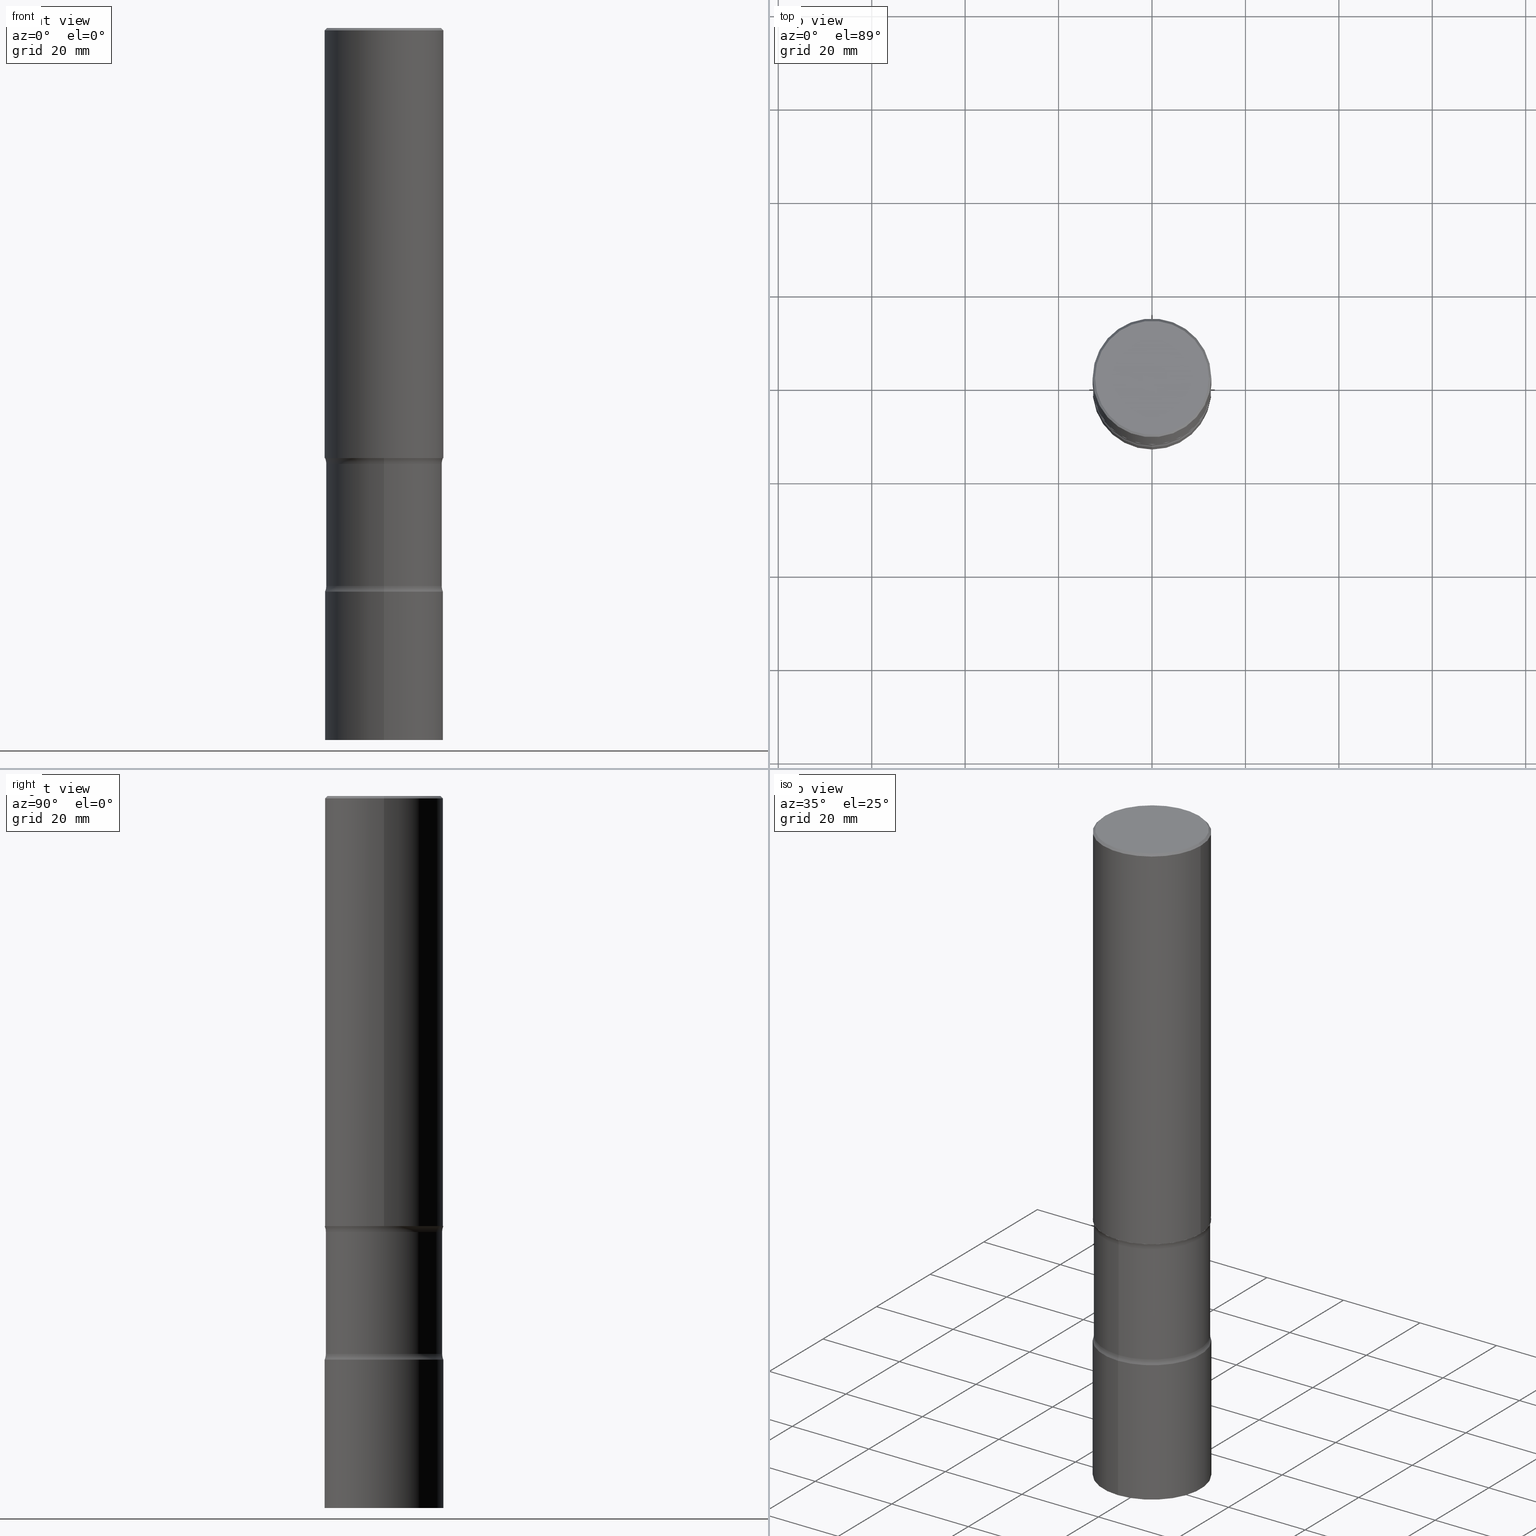
[diagram: canonical four-view strip — front | top / right | iso, engineering-drawing reading convention]
A machine part, canonical four-view strip (front | top / right | iso — engineering-drawing reading convention). The complete STEP part file that produces these views, byte-faithful:
ISO-10303-21;
HEADER;
FILE_DESCRIPTION (( 'STEP AP203' ),
    '1' );
FILE_NAME ('32718.STEP',
    '2024-03-11T13:17:11',
    ( '' ),
    ( '' ),
    'SwSTEP 2.0',
    'SolidWorks 2023',
    '' );
FILE_SCHEMA (( 'CONFIG_CONTROL_DESIGN' ));
ENDSEC;

DATA;
#1 = ORIENTED_EDGE ( 'NONE', *, *, #6, .F. ) ;
#2 = ORIENTED_EDGE ( 'NONE', *, *, #158, .F. ) ;
#3 = FACE_OUTER_BOUND ( 'NONE', #309, .T. ) ;
#4 = EDGE_LOOP ( 'NONE', ( #226, #433 ) ) ;
#5 = AXIS2_PLACEMENT_3D ( 'NONE', #104, #182, #29 ) ;
#6 = EDGE_CURVE ( 'NONE', #94, #41, #86, .T. ) ;
#7 = CC_DESIGN_APPROVAL ( #122, ( #385 ) ) ;
#8 = MECHANICAL_CONTEXT ( 'NONE', #26, 'mechanical' ) ;
#9 = ORIENTED_EDGE ( 'NONE', *, *, #232, .F. ) ;
#10 = EDGE_LOOP ( 'NONE', ( #9, #54 ) ) ;
#11 = MANIFOLD_SOLID_BREP ( 'Body-Move/Copy2[1]', #333 ) ;
#12 = CALENDAR_DATE ( 2024, 11, 3 ) ;
#13 = DIRECTION ( 'NONE',  ( 6.982962677686266711E-15, 1.000000000000000000, -3.345119992241954342E-15 ) ) ;
#14 = CARTESIAN_POINT ( 'NONE',  ( 3.552713678800631091E-15, 0.4999999999999790168, -6.000000000000002665 ) ) ;
#15 = ADVANCED_FACE ( 'NONE', ( #319 ), #476, .T. ) ;
#16 = ORIENTED_EDGE ( 'NONE', *, *, #339, .T. ) ;
#17 = CARTESIAN_POINT ( 'NONE',  ( -4.219206268629404726E-15, -0.6150000000000132028, -3.673989794855663238 ) ) ;
#18 = DIRECTION ( 'NONE',  ( 2.601351323791836917E-29, -3.268248701348439037E-15, -1.000000000000000000 ) ) ;
#19 = LINE ( 'NONE', #415, #420 ) ;
#20 = LINE ( 'NONE', #176, #305 ) ;
#21 = CYLINDRICAL_SURFACE ( 'NONE', #155, 0.5000000000000001110 ) ;
#22 = CLOSED_SHELL ( 'NONE', ( #147, #505, #421, #294, #362, #62 ) ) ;
#23 = CIRCLE ( 'NONE', #224, 0.4900000000000001021 ) ;
#24 = APPROVAL_PERSON_ORGANIZATION ( #297, #122, #293 ) ;
#25 = CARTESIAN_POINT ( 'NONE',  ( 3.421651712066359198E-15, 0.4899999999999870570, -3.673989794855666791 ) ) ;
#26 = APPLICATION_CONTEXT ( 'configuration controlled 3d designs of mechanical parts and assemblies' ) ;
#27 = CARTESIAN_POINT ( 'NONE',  ( 1.486357676291951426E-28, -2.067570323369244540E-14, -5.999999999999999112 ) ) ;
#28 = LINE ( 'NONE', #408, #427 ) ;
#29 = DIRECTION ( 'NONE',  ( 1.000000000000000000, -6.982962677686265922E-15, 4.876176775795935793E-29 ) ) ;
#30 = PERSON_AND_ORGANIZATION ( #220, #378 ) ;
#31 = PLANE ( 'NONE',  #114 ) ;
#32 = CIRCLE ( 'NONE', #445, 0.4900000000000001021 ) ;
#33 = CARTESIAN_POINT ( 'NONE',  ( 1.149617381423846598E-28, -1.641348940497263768E-14, -4.701010205144336318 ) ) ;
#34 = PRODUCT_RELATED_PRODUCT_CATEGORY ( 'detail', '', ( #230 ) ) ;
#35 = ORIENTED_EDGE ( 'NONE', *, *, #423, .F. ) ;
#36 = EDGE_CURVE ( 'NONE', #200, #465, #215, .T. ) ;
#37 = EDGE_LOOP ( 'NONE', ( #358, #78, #398, #326 ) ) ;
#38 = EDGE_CURVE ( 'NONE', #192, #422, #349, .T. ) ;
#39 = AXIS2_PLACEMENT_3D ( 'NONE', #69, #442, #490 ) ;
#40 = EDGE_LOOP ( 'NONE', ( #125, #239, #483, #348 ) ) ;
#41 = VERTEX_POINT ( 'NONE', #72 ) ;
#42 = DIMENSIONAL_EXPONENTS ( 1.000000000000000000, 0.000000000000000000, 0.000000000000000000, 0.000000000000000000, 0.000000000000000000, 0.000000000000000000, 0.000000000000000000 ) ;
#43 = ORIENTED_EDGE ( 'NONE', *, *, #77, .F. ) ;
#44 = CARTESIAN_POINT ( 'NONE',  ( -3.430248998885682162E-15, -0.5000000000000134337, -3.624999999999999112 ) ) ;
#45 = DIRECTION ( 'NONE',  ( 1.000000000000000000, 0.000000000000000000, 0.000000000000000000 ) ) ;
#46 = ORIENTED_EDGE ( 'NONE', *, *, #100, .F. ) ;
#47 = TOROIDAL_SURFACE ( 'NONE', #205, 0.6149999999999999911, 0.1249999999999999306 ) ;
#48 = EDGE_CURVE ( 'NONE', #50, #469, #127, .T. ) ;
#49 = APPROVAL_ROLE ( '' ) ;
#50 = VERTEX_POINT ( 'NONE', #137 ) ;
#51 =( NAMED_UNIT ( * ) SI_UNIT ( $, .STERADIAN. ) SOLID_ANGLE_UNIT ( ) );
#52 = DIRECTION ( 'NONE',  ( 2.601351323791836917E-29, -3.268248701348439037E-15, -1.000000000000000000 ) ) ;
#53 = PERSON_AND_ORGANIZATION ( #220, #378 ) ;
#54 = ORIENTED_EDGE ( 'NONE', *, *, #266, .F. ) ;
#56 = CIRCLE ( 'NONE', #368, 0.1250000000000000278 ) ;
#55 = UNCERTAINTY_MEASURE_WITH_UNIT (LENGTH_MEASURE( 1.000000000000000082E-05 ), #124, 'distance_accuracy_value', 'NONE');
#57 = DIRECTION ( 'NONE',  ( 6.982962677686266711E-15, 1.000000000000000000, -2.230079994827969693E-15 ) ) ;
#58 = EDGE_CURVE ( 'NONE', #364, #350, #257, .T. ) ;
#59 = CARTESIAN_POINT ( 'NONE',  ( -3.491481338842986233E-15, -0.5000000000000209832, -5.999999999999998224 ) ) ;
#60 = CARTESIAN_POINT ( 'NONE',  ( -0.4799999999999995937, 3.386736898677836436E-15, 1.280553747027767124E-17 ) ) ;
#61 = DIRECTION ( 'NONE',  ( -2.445468806185136597E-29, 3.491481338843145583E-15, 1.000000000000000000 ) ) ;
#62 = ADVANCED_FACE ( 'NONE', ( #254 ), #105, .T. ) ;
#63 = CARTESIAN_POINT ( 'NONE',  ( 1.149617381423846598E-28, -1.641348940497263768E-14, -4.701010205144336318 ) ) ;
#64 = CARTESIAN_POINT ( 'NONE',  ( 5.516144398293378327E-29, -3.406175840264733616E-14, -5.999999999999999112 ) ) ;
#65 = CC_DESIGN_PERSON_AND_ORGANIZATION_ASSIGNMENT ( #242, #366, ( #154 ) ) ;
#66 = AXIS2_PLACEMENT_3D ( 'NONE', #437, #91, #243 ) ;
#67 = DIRECTION ( 'NONE',  ( -1.000000000000000000, 6.982962677686266711E-15, 0.000000000000000000 ) ) ;
#68 = CIRCLE ( 'NONE', #351, 0.5000000000000001110 ) ;
#69 = CARTESIAN_POINT ( 'NONE',  ( -3.131554243005659264E-46, 4.471029511141341874E-32, 1.280553747030123384E-17 ) ) ;
#70 = DIRECTION ( 'NONE',  ( -2.444607917511519707E-29, 3.492714180422504382E-15, 1.000000000000000000 ) ) ;
#71 = CARTESIAN_POINT ( 'NONE',  ( 8.864824422421122405E-29, -1.265661985330640574E-14, -3.625000000000000888 ) ) ;
#72 = CARTESIAN_POINT ( 'NONE',  ( -3.395946508896822327E-15, -0.4900000000000131473, -3.673989794855663238 ) ) ;
#73 = APPROVAL ( #166, 'UNSPECIFIED' ) ;
#74 = ORIENTED_EDGE ( 'NONE', *, *, #202, .T. ) ;
#75 = CIRCLE ( 'NONE', #360, 0.5000000000000000000 ) ;
#76 = CC_DESIGN_SECURITY_CLASSIFICATION ( #385, ( #446 ) ) ;
#77 = EDGE_CURVE ( 'NONE', #41, #422, #28, .T. ) ;
#78 = ORIENTED_EDGE ( 'NONE', *, *, #58, .F. ) ;
#79 = ORIENTED_EDGE ( 'NONE', *, *, #472, .T. ) ;
#80 = AXIS2_PLACEMENT_3D ( 'NONE', #112, #151, #344 ) ;
#81 = ORIENTED_EDGE ( 'NONE', *, *, #241, .F. ) ;
#82 = VERTEX_POINT ( 'NONE', #223 ) ;
#83 = CARTESIAN_POINT ( 'NONE',  ( 3.552713678800647657E-15, 0.4999999999999835132, -4.750000000000001776 ) ) ;
#84 = ORIENTED_EDGE ( 'NONE', *, *, #428, .T. ) ;
#85 = CARTESIAN_POINT ( 'NONE',  ( 1.486357676291951426E-28, -2.067570323369244540E-14, -5.999999999999999112 ) ) ;
#86 = CIRCLE ( 'NONE', #216, 0.4900000000000001021 ) ;
#87 = CARTESIAN_POINT ( 'NONE',  ( 8.812807036613977578E-29, -1.307372340140625811E-14, -3.673989794855665014 ) ) ;
#88 = AXIS2_PLACEMENT_3D ( 'NONE', #424, #327, #484 ) ;
#89 = LOCAL_TIME ( 9, 17, 11.00000000000000000, #397 ) ;
#90 = DIRECTION ( 'NONE',  ( 0.000000000000000000, 0.000000000000000000, 1.000000000000000000 ) ) ;
#91 = DIRECTION ( 'NONE',  ( -2.444607917511519987E-29, 3.492714180422504776E-15, 1.000000000000000000 ) ) ;
#92 = DIRECTION ( 'NONE',  ( 2.601351323791836917E-29, -3.268248701348439037E-15, -1.000000000000000000 ) ) ;
#93 = DIRECTION ( 'NONE',  ( -1.000000000000000000, 6.982962677686266711E-15, 0.000000000000000000 ) ) ;
#94 = VERTEX_POINT ( 'NONE', #25 ) ;
#95 = CARTESIAN_POINT ( 'NONE',  ( 1.466764750506912217E-28, -2.095628508253502945E-14, -6.000000000000000888 ) ) ;
#96 = CARTESIAN_POINT ( 'NONE',  ( 0.5000000000000000000, -1.614810119214954068E-14, -3.625000000000000888 ) ) ;
#97 = CARTESIAN_POINT ( 'NONE',  ( 1.161188760817972078E-28, -1.659039235700689818E-14, -4.750000000000000000 ) ) ;
#98 = AXIS2_PLACEMENT_3D ( 'NONE', #439, #92, #272 ) ;
#99 = CIRCLE ( 'NONE', #412, 0.1249999999999999029 ) ;
#100 = EDGE_CURVE ( 'NONE', #329, #197, #203, .T. ) ;
#101 = PLANE ( 'NONE',  #179 ) ;
#102 = DIRECTION ( 'NONE',  ( 0.7071067811865459074, -7.319954787623249734E-15, -0.7071067811865491270 ) ) ;
#103 = DIRECTION ( 'NONE',  ( 6.982962677686265922E-15, 1.000000000000000000, -3.268248701348439037E-15 ) ) ;
#104 = CARTESIAN_POINT ( 'NONE',  ( 8.864824422421122405E-29, -1.265661985330640574E-14, -3.625000000000000888 ) ) ;
#105 = CYLINDRICAL_SURFACE ( 'NONE', #163, 0.4999999999999997780 ) ;
#106 = CARTESIAN_POINT ( 'NONE',  ( 1.148444794047964962E-28, -1.643028152359054986E-14, -4.701010205144336318 ) ) ;
#107 = AXIS2_PLACEMENT_3D ( 'NONE', #331, #455, #290 ) ;
#108 = DIRECTION ( 'NONE',  ( 2.601351323791836917E-29, -3.268248701348439037E-15, -1.000000000000000000 ) ) ;
#109 = DIRECTION ( 'NONE',  ( 6.982962677686266711E-15, 1.000000000000000000, -3.345119992241954342E-15 ) ) ;
#110 = SHAPE_DEFINITION_REPRESENTATION ( #390, #240 ) ;
#111 = DIRECTION ( 'NONE',  ( 2.601351323791836917E-29, -3.268248701348439037E-15, -1.000000000000000000 ) ) ;
#112 = CARTESIAN_POINT ( 'NONE',  ( -4.219206268629376327E-15, -0.6150000000000164224, -4.701010205144334542 ) ) ;
#113 = ORIENTED_EDGE ( 'NONE', *, *, #406, .T. ) ;
#114 = AXIS2_PLACEMENT_3D ( 'NONE', #64, #211, #261 ) ;
#115 = EDGE_CURVE ( 'NONE', #350, #364, #128, .T. ) ;
#116 = EDGE_CURVE ( 'NONE', #94, #192, #221, .T. ) ;
#117 = ORIENTED_EDGE ( 'NONE', *, *, #438, .T. ) ;
#118 = CLOSED_SHELL ( 'NONE', ( #300, #355, #238, #464, #227, #456, #444, #474 ) ) ;
#119 = CIRCLE ( 'NONE', #400, 0.1250000000000000278 ) ;
#120 = APPROVAL_PERSON_ORGANIZATION ( #53, #73, #49 ) ;
#121 = ORIENTED_EDGE ( 'NONE', *, *, #354, .T. ) ;
#122 = APPROVAL ( #458, 'UNSPECIFIED' ) ;
#123 = EDGE_LOOP ( 'NONE', ( #194, #204, #269, #81 ) ) ;
#124 =( CONVERSION_BASED_UNIT ( 'INCH', #247 ) LENGTH_UNIT ( ) NAMED_UNIT ( #42 ) );
#125 = ORIENTED_EDGE ( 'NONE', *, *, #48, .F. ) ;
#126 = ADVANCED_FACE ( 'NONE', ( #413 ), #31, .T. ) ;
#127 = CIRCLE ( 'NONE', #479, 0.5000000000000001110 ) ;
#128 = CIRCLE ( 'NONE', #39, 0.4799999999999995937 ) ;
#129 = DIRECTION ( 'NONE',  ( -6.982962677686265133E-15, -1.000000000000000000, 3.492714180422504382E-15 ) ) ;
#130 = CARTESIAN_POINT ( 'NONE',  ( 0.4999999999999997780, -3.491481338843131778E-15, 2.438088387897966775E-29 ) ) ;
#131 = APPLICATION_PROTOCOL_DEFINITION ( 'international standard', 'config_control_design', 1994, #26 ) ;
#132 = ORIENTED_EDGE ( 'NONE', *, *, #116, .F. ) ;
#133 = DIRECTION ( 'NONE',  ( 6.982962677686266711E-15, 1.000000000000000000, -2.230079994827969693E-15 ) ) ;
#134 = CARTESIAN_POINT ( 'NONE',  ( -3.131554243005659264E-46, 4.471029511141341874E-32, 1.280553747030123384E-17 ) ) ;
#135 = DIRECTION ( 'NONE',  ( 2.601351323791836917E-29, -3.268248701348439037E-15, -1.000000000000000000 ) ) ;
#136 = CALENDAR_DATE ( 2024, 11, 3 ) ;
#137 = CARTESIAN_POINT ( 'NONE',  ( -3.430248998885650608E-15, -0.5000000000000167644, -4.749999999999999112 ) ) ;
#138 = VECTOR ( 'NONE', #452, 39.37007874015748143 ) ;
#139 = CARTESIAN_POINT ( 'NONE',  ( 0.4999999999999996114, -3.500078625662626318E-15, -0.02000000000000006981 ) ) ;
#140 = PLANE ( 'NONE',  #410 ) ;
#141 = LINE ( 'NONE', #296, #471 ) ;
#142 = SECURITY_CLASSIFICATION_LEVEL ( 'unclassified' ) ;
#143 = CARTESIAN_POINT ( 'NONE',  ( 0.000000000000000000, 0.000000000000000000, 0.000000000000000000 ) ) ;
#144 = PLANE ( 'NONE',  #5 ) ;
#145 = PERSON_AND_ORGANIZATION ( #220, #378 ) ;
#146 = DIRECTION ( 'NONE',  ( 1.000000000000000000, -6.982962677686266711E-15, 0.000000000000000000 ) ) ;
#147 = ADVANCED_FACE ( 'NONE', ( #416 ), #380, .T. ) ;
#148 = CARTESIAN_POINT ( 'NONE',  ( 8.812807036613977578E-29, -1.307372340140625811E-14, -3.673989794855665014 ) ) ;
#149 = TOROIDAL_SURFACE ( 'NONE', #346, 0.6149999999999999911, 0.1249999999999999306 ) ;
#150 = APPROVAL_DATE_TIME ( #500, #382 ) ;
#151 = DIRECTION ( 'NONE',  ( 1.000000000000000000, -6.860497997771530774E-15, 4.843532690973873817E-29 ) ) ;
#152 = ORIENTED_EDGE ( 'NONE', *, *, #472, .F. ) ;
#153 = ORIENTED_EDGE ( 'NONE', *, *, #414, .F. ) ;
#154 = PRODUCT_DEFINITION ( 'UNKNOWN', '', #446, #467 ) ;
#155 = AXIS2_PLACEMENT_3D ( 'NONE', #497, #301, #180 ) ;
#156 = LOCAL_TIME ( 9, 17, 11.00000000000000000, #281 ) ;
#157 = ORIENTED_EDGE ( 'NONE', *, *, #283, .T. ) ;
#158 = EDGE_CURVE ( 'NONE', #364, #329, #20, .T. ) ;
#159 = ORIENTED_EDGE ( 'NONE', *, *, #365, .F. ) ;
#160 = CC_DESIGN_PERSON_AND_ORGANIZATION_ASSIGNMENT ( #489, #207, ( #385 ) ) ;
#161 = ORIENTED_EDGE ( 'NONE', *, *, #266, .T. ) ;
#162 = DIRECTION ( 'NONE',  ( 2.601351323791836917E-29, -3.268248701348439037E-15, -1.000000000000000000 ) ) ;
#163 = AXIS2_PLACEMENT_3D ( 'NONE', #143, #251, #286 ) ;
#164 = VERTEX_POINT ( 'NONE', #181 ) ;
#165 = DIRECTION ( 'NONE',  ( 2.601351323791836917E-29, -3.268248701348439037E-15, -1.000000000000000000 ) ) ;
#166 = APPROVAL_STATUS ( 'not_yet_approved' ) ;
#167 = ORIENTED_EDGE ( 'NONE', *, *, #241, .T. ) ;
#168 = EDGE_CURVE ( 'NONE', #267, #357, #68, .T. ) ;
#169 = CALENDAR_DATE ( 2024, 11, 3 ) ;
#170 = EDGE_CURVE ( 'NONE', #478, #164, #506, .T. ) ;
#171 = AXIS2_PLACEMENT_3D ( 'NONE', #95, #488, #443 ) ;
#172 = EDGE_LOOP ( 'NONE', ( #470, #507 ) ) ;
#173 = DIRECTION ( 'NONE',  ( 2.601351323791836917E-29, -3.268248701348439037E-15, -1.000000000000000000 ) ) ;
#174 = ORIENTED_EDGE ( 'NONE', *, *, #115, .T. ) ;
#175 = DIRECTION ( 'NONE',  ( -1.000000000000000000, 6.982962677686265922E-15, -4.876176775795935793E-29 ) ) ;
#176 = CARTESIAN_POINT ( 'NONE',  ( -0.4999999999999996114, 3.421651712066267296E-15, -0.02000000000000006981 ) ) ;
#177 = FACE_OUTER_BOUND ( 'NONE', #235, .T. ) ;
#178 = DIRECTION ( 'NONE',  ( 2.444607917511519987E-29, -3.492714180422504382E-15, -1.000000000000000000 ) ) ;
#179 = AXIS2_PLACEMENT_3D ( 'NONE', #405, #178, #334 ) ;
#180 = DIRECTION ( 'NONE',  ( -6.982962677686265133E-15, -1.000000000000000000, 3.492714180422504382E-15 ) ) ;
#181 = CARTESIAN_POINT ( 'NONE',  ( -0.5000000000000000000, -2.810511061241131620E-15, -3.625000000000000888 ) ) ;
#182 = DIRECTION ( 'NONE',  ( -2.438088387897960049E-29, 3.491481338843145188E-15, 1.000000000000000000 ) ) ;
#183 = FACE_OUTER_BOUND ( 'NONE', #275, .T. ) ;
#184 = DIRECTION ( 'NONE',  ( -2.445468806185136597E-29, 3.491481338843145583E-15, 1.000000000000000000 ) ) ;
#185 = CARTESIAN_POINT ( 'NONE',  ( 4.890937612370289799E-31, -6.982962677686315028E-17, -0.02000000000000006981 ) ) ;
#186 = APPROVAL_ROLE ( '' ) ;
#187 = DIRECTION ( 'NONE',  ( -2.445468806185136597E-29, 3.491481338843145583E-15, 1.000000000000000000 ) ) ;
#188 = DIRECTION ( 'NONE',  ( -2.445468806185136597E-29, 3.491481338843145583E-15, 1.000000000000000000 ) ) ;
#189 = VECTOR ( 'NONE', #102, 39.37007874015748143 ) ;
#190 = ORIENTED_EDGE ( 'NONE', *, *, #318, .T. ) ;
#191 = AXIS2_PLACEMENT_3D ( 'NONE', #503, #308, #463 ) ;
#192 = VERTEX_POINT ( 'NONE', #496 ) ;
#193 = CC_DESIGN_PERSON_AND_ORGANIZATION_ASSIGNMENT ( #145, #302, ( #446 ) ) ;
#194 = ORIENTED_EDGE ( 'NONE', *, *, #170, .T. ) ;
#195 = FACE_OUTER_BOUND ( 'NONE', #391, .T. ) ;
#196 = AXIS2_PLACEMENT_3D ( 'NONE', #185, #206, #292 ) ;
#197 = VERTEX_POINT ( 'NONE', #372 ) ;
#198 = ORIENTED_EDGE ( 'NONE', *, *, #48, .T. ) ;
#199 = FACE_OUTER_BOUND ( 'NONE', #231, .T. ) ;
#200 = VERTEX_POINT ( 'NONE', #59 ) ;
#201 = CARTESIAN_POINT ( 'NONE',  ( 3.491481338843249712E-15, 0.4999999999999836242, -4.750000000000001776 ) ) ;
#202 = EDGE_CURVE ( 'NONE', #357, #267, #501, .T. ) ;
#203 = CIRCLE ( 'NONE', #277, 0.4999999999999996114 ) ;
#204 = ORIENTED_EDGE ( 'NONE', *, *, #414, .T. ) ;
#205 = AXIS2_PLACEMENT_3D ( 'NONE', #33, #111, #264 ) ;
#206 = DIRECTION ( 'NONE',  ( -2.445468806185136597E-29, 3.491481338843145583E-15, 1.000000000000000000 ) ) ;
#207 = PERSON_AND_ORGANIZATION_ROLE ( 'classification_officer' ) ;
#208 = CC_DESIGN_DATE_AND_TIME_ASSIGNMENT ( #482, #263, ( #154 ) ) ;
#209 = CARTESIAN_POINT ( 'NONE',  ( 0.000000000000000000, 0.000000000000000000, 0.000000000000000000 ) ) ;
#210 = CARTESIAN_POINT ( 'NONE',  ( -0.4999999999999996114, 3.421651712066267296E-15, -0.02000000000000006981 ) ) ;
#211 = DIRECTION ( 'NONE',  ( 2.444607917511519987E-29, -3.492714180422504382E-15, -1.000000000000000000 ) ) ;
#212 = FACE_OUTER_BOUND ( 'NONE', #425, .T. ) ;
#213 = DATE_TIME_ROLE ( 'classification_date' ) ;
#214 = DIRECTION ( 'NONE',  ( -0.7071067811865459074, 2.468850131082240100E-15, -0.7071067811865491270 ) ) ;
#215 = CIRCLE ( 'NONE', #66, 0.5000000000000000000 ) ;
#216 = AXIS2_PLACEMENT_3D ( 'NONE', #87, #165, #13 ) ;
#217 = ADVANCED_FACE ( 'NONE', ( #448 ), #101, .F. ) ;
#218 = CARTESIAN_POINT ( 'NONE',  ( -3.395946508896793533E-15, -0.4900000000000166445, -4.701010205144335430 ) ) ;
#219 = LOCAL_TIME ( 9, 17, 11.00000000000000000, #462 ) ;
#220 = PERSON ( 'UNSPECIFIED', 'UNSPECIFIED', 'UNSPECIFIED', ('UNSPECIFIED'), ('UNSPECIFIED'), ('UNSPECIFIED') ) ;
#221 = LINE ( 'NONE', #461, #323 ) ;
#222 = DIRECTION ( 'NONE',  ( 2.601351323791836917E-29, -3.268248701348439037E-15, -1.000000000000000000 ) ) ;
#223 = CARTESIAN_POINT ( 'NONE',  ( 3.491481338843223285E-15, 0.4999999999999875655, -3.625000000000002665 ) ) ;
#224 = AXIS2_PLACEMENT_3D ( 'NONE', #148, #262, #109 ) ;
#225 = LOCAL_TIME ( 9, 17, 11.00000000000000000, #253 ) ;
#226 = ORIENTED_EDGE ( 'NONE', *, *, #170, .F. ) ;
#227 = ADVANCED_FACE ( 'NONE', ( #256 ), #140, .F. ) ;
#228 = ORIENTED_EDGE ( 'NONE', *, *, #354, .F. ) ;
#229 = EDGE_CURVE ( 'NONE', #50, #422, #311, .T. ) ;
#230 = PRODUCT ( '32718', '32718', '', ( #8 ) ) ;
#231 = EDGE_LOOP ( 'NONE', ( #361, #113, #190, #2 ) ) ;
#232 = EDGE_CURVE ( 'NONE', #82, #273, #466, .T. ) ;
#233 = ORIENTED_EDGE ( 'NONE', *, *, #6, .T. ) ;
#234 = CARTESIAN_POINT ( 'NONE',  ( 0.000000000000000000, 0.000000000000000000, 0.000000000000000000 ) ) ;
#235 = EDGE_LOOP ( 'NONE', ( #504, #174 ) ) ;
#236 = CIRCLE ( 'NONE', #196, 0.4999999999999996114 ) ;
#237 = AXIS2_PLACEMENT_3D ( 'NONE', #313, #440, #328 ) ;
#238 = ADVANCED_FACE ( 'NONE', ( #419 ), #393, .F. ) ;
#239 = ORIENTED_EDGE ( 'NONE', *, *, #229, .T. ) ;
#240 = ADVANCED_BREP_SHAPE_REPRESENTATION ( '32718', ( #11, #347, #356, #291 ), #435 ) ;
#241 = EDGE_CURVE ( 'NONE', #478, #197, #268, .T. ) ;
#242 = PERSON_AND_ORGANIZATION ( #220, #378 ) ;
#243 = DIRECTION ( 'NONE',  ( -6.982962677686265922E-15, -1.000000000000000000, 4.370956789862821150E-15 ) ) ;
#244 = PERSON_AND_ORGANIZATION_ROLE ( 'design_owner' ) ;
#245 = ORIENTED_EDGE ( 'NONE', *, *, #365, .T. ) ;
#246 = PLANE ( 'NONE',  #460 ) ;
#247 = LENGTH_MEASURE_WITH_UNIT ( LENGTH_MEASURE( 0.02539999999999999897 ), #316 );
#248 = DIRECTION ( 'NONE',  ( 6.982962677686265922E-15, 1.000000000000000000, -3.278217592397115073E-15 ) ) ;
#249 = DIRECTION ( 'NONE',  ( 6.982962677686265922E-15, 1.000000000000000000, -3.268248701348439037E-15 ) ) ;
#250 = PERSON_AND_ORGANIZATION ( #220, #378 ) ;
#251 = DIRECTION ( 'NONE',  ( -2.445468806185136597E-29, 3.491481338843145583E-15, 1.000000000000000000 ) ) ;
#252 = DIRECTION ( 'NONE',  ( 1.000000000000000000, -6.860497997771530774E-15, 4.843532690973873817E-29 ) ) ;
#253 = COORDINATED_UNIVERSAL_TIME_OFFSET ( 5, 0, .BEHIND. ) ;
#254 = FACE_OUTER_BOUND ( 'NONE', #265, .T. ) ;
#255 = DIRECTION ( 'NONE',  ( -2.445468806185136877E-29, 3.491481338843145188E-15, 1.000000000000000000 ) ) ;
#256 = FACE_OUTER_BOUND ( 'NONE', #10, .T. ) ;
#257 = CIRCLE ( 'NONE', #322, 0.4799999999999995937 ) ;
#258 = CC_DESIGN_APPROVAL ( #73, ( #154 ) ) ;
#259 = FACE_OUTER_BOUND ( 'NONE', #37, .T. ) ;
#260 = DATE_AND_TIME ( #376, #225 ) ;
#261 = DIRECTION ( 'NONE',  ( 6.982962677686265922E-15, 1.000000000000000000, -3.492714180422504382E-15 ) ) ;
#262 = DIRECTION ( 'NONE',  ( 2.601351323791836917E-29, -3.268248701348439037E-15, -1.000000000000000000 ) ) ;
#263 = DATE_TIME_ROLE ( 'creation_date' ) ;
#264 = DIRECTION ( 'NONE',  ( 6.982962677686265922E-15, 1.000000000000000000, -3.268248701348439037E-15 ) ) ;
#265 = EDGE_LOOP ( 'NONE', ( #153, #314, #167, #46 ) ) ;
#266 = EDGE_CURVE ( 'NONE', #273, #82, #434, .T. ) ;
#267 = VERTEX_POINT ( 'NONE', #83 ) ;
#268 = LINE ( 'NONE', #130, #480 ) ;
#269 = ORIENTED_EDGE ( 'NONE', *, *, #318, .F. ) ;
#270 = AXIS2_PLACEMENT_3D ( 'NONE', #338, #184, #146 ) ;
#271 = ORIENTED_EDGE ( 'NONE', *, *, #232, .T. ) ;
#272 = DIRECTION ( 'NONE',  ( 6.982962677686265133E-15, 1.000000000000000000, -3.278217592397113101E-15 ) ) ;
#273 = VERTEX_POINT ( 'NONE', #44 ) ;
#274 = PERSON_AND_ORGANIZATION ( #220, #378 ) ;
#275 = EDGE_LOOP ( 'NONE', ( #79, #198 ) ) ;
#276 = AXIS2_PLACEMENT_3D ( 'NONE', #394, #321, #129 ) ;
#277 = AXIS2_PLACEMENT_3D ( 'NONE', #494, #383, #499 ) ;
#278 = CYLINDRICAL_SURFACE ( 'NONE', #335, 0.4900000000000001021 ) ;
#279 = TOROIDAL_SURFACE ( 'NONE', #352, 0.6150000000000001021, 0.1250000000000000278 ) ;
#280 = ORIENTED_EDGE ( 'NONE', *, *, #438, .F. ) ;
#281 = COORDINATED_UNIVERSAL_TIME_OFFSET ( 5, 0, .BEHIND. ) ;
#282 = ORIENTED_EDGE ( 'NONE', *, *, #38, .T. ) ;
#283 = EDGE_CURVE ( 'NONE', #465, #200, #389, .T. ) ;
#284 = CYLINDRICAL_SURFACE ( 'NONE', #384, 0.4900000000000001021 ) ;
#285 = DIRECTION ( 'NONE',  ( 6.982962677686265922E-15, 1.000000000000000000, -3.278217592397115073E-15 ) ) ;
#286 = DIRECTION ( 'NONE',  ( 1.000000000000000000, -6.982962677686266711E-15, 4.876176775795935793E-29 ) ) ;
#287 = FACE_OUTER_BOUND ( 'NONE', #371, .T. ) ;
#288 = CARTESIAN_POINT ( 'NONE',  ( -3.491481338843133355E-15, -0.5000000000000001110, 1.746357090211252585E-15 ) ) ;
#289 = AXIS2_PLACEMENT_3D ( 'NONE', #209, #61, #486 ) ;
#290 = DIRECTION ( 'NONE',  ( -6.982962677686265922E-15, -1.000000000000000000, 3.278217592397115073E-15 ) ) ;
#291 = AXIS2_PLACEMENT_3D ( 'NONE', #234, #90, #45 ) ;
#292 = DIRECTION ( 'NONE',  ( 1.000000000000000000, -6.982962677686266711E-15, 0.000000000000000000 ) ) ;
#293 = APPROVAL_ROLE ( '' ) ;
#294 = ADVANCED_FACE ( 'NONE', ( #177 ), #246, .F. ) ;
#295 = CARTESIAN_POINT ( 'NONE',  ( 8.864824422421122405E-29, -1.265661985330640574E-14, -3.625000000000000888 ) ) ;
#296 = CARTESIAN_POINT ( 'NONE',  ( -0.4999999999999997780, 3.552713678800499352E-15, -2.459467545127452050E-29 ) ) ;
#297 = PERSON_AND_ORGANIZATION ( #220, #378 ) ;
#298 = FACE_OUTER_BOUND ( 'NONE', #430, .T. ) ;
#299 = DIRECTION ( 'NONE',  ( -2.444607917511519987E-29, 3.492714180422504776E-15, 1.000000000000000000 ) ) ;
#300 = ADVANCED_FACE ( 'NONE', ( #212 ), #284, .T. ) ;
#301 = DIRECTION ( 'NONE',  ( -2.444607917511519987E-29, 3.492714180422504776E-15, 1.000000000000000000 ) ) ;
#302 = PERSON_AND_ORGANIZATION_ROLE ( 'creator' ) ;
#303 = PLANE ( 'NONE',  #237 ) ;
#304 = DIRECTION ( 'NONE',  ( 2.601351323791836917E-29, -3.268248701348439037E-15, -1.000000000000000000 ) ) ;
#305 = VECTOR ( 'NONE', #214, 39.37007874015748143 ) ;
#306 = CC_DESIGN_APPROVAL ( #382, ( #446 ) ) ;
#307 = APPROVAL_DATE_TIME ( #260, #122 ) ;
#308 = DIRECTION ( 'NONE',  ( 2.601351323791836917E-29, -3.268248701348439037E-15, -1.000000000000000000 ) ) ;
#309 = EDGE_LOOP ( 'NONE', ( #43, #84, #317, #35 ) ) ;
#310 = EDGE_LOOP ( 'NONE', ( #359, #157, #117, #468 ) ) ;
#311 = CIRCLE ( 'NONE', #80, 0.1249999999999999029 ) ;
#312 = AXIS2_PLACEMENT_3D ( 'NONE', #369, #173, #285 ) ;
#313 = CARTESIAN_POINT ( 'NONE',  ( 1.161597682937940108E-28, -1.658453635950494339E-14, -4.750000000000000000 ) ) ;
#314 = ORIENTED_EDGE ( 'NONE', *, *, #436, .T. ) ;
#315 = AXIS2_PLACEMENT_3D ( 'NONE', #409, #457, #67 ) ;
#316 =( LENGTH_UNIT ( ) NAMED_UNIT ( * ) SI_UNIT ( $, .METRE. ) );
#317 = ORIENTED_EDGE ( 'NONE', *, *, #116, .T. ) ;
#318 = EDGE_CURVE ( 'NONE', #197, #329, #236, .T. ) ;
#319 = FACE_OUTER_BOUND ( 'NONE', #310, .T. ) ;
#320 = APPLICATION_PROTOCOL_DEFINITION ( 'international standard', 'config_control_design', 1994, #454 ) ;
#321 = DIRECTION ( 'NONE',  ( -2.444607917511519987E-29, 3.492714180422504776E-15, 1.000000000000000000 ) ) ;
#322 = AXIS2_PLACEMENT_3D ( 'NONE', #134, #188, #340 ) ;
#323 = VECTOR ( 'NONE', #18, 39.37007874015748143 ) ;
#324 =( NAMED_UNIT ( * ) PLANE_ANGLE_UNIT ( ) SI_UNIT ( $, .RADIAN. ) );
#325 = ADVANCED_FACE ( 'NONE', ( #287 ), #21, .T. ) ;
#326 = ORIENTED_EDGE ( 'NONE', *, *, #100, .T. ) ;
#327 = DIRECTION ( 'NONE',  ( 2.601351323791836917E-29, -3.268248701348439037E-15, -1.000000000000000000 ) ) ;
#328 = DIRECTION ( 'NONE',  ( -6.982962677686265922E-15, -1.000000000000000000, 3.268248701348439037E-15 ) ) ;
#329 = VERTEX_POINT ( 'NONE', #210 ) ;
#330 = PERSON_AND_ORGANIZATION_ROLE ( 'design_supplier' ) ;
#331 = CARTESIAN_POINT ( 'NONE',  ( 1.161188760817972078E-28, -1.659039235700689818E-14, -4.750000000000000000 ) ) ;
#332 = DIRECTION ( 'NONE',  ( -6.982962677686265133E-15, -1.000000000000000000, 0.000000000000000000 ) ) ;
#333 = CLOSED_SHELL ( 'NONE', ( #325, #15, #217, #126 ) ) ;
#334 = DIRECTION ( 'NONE',  ( 6.982962677686265922E-15, 1.000000000000000000, -3.492714180422504382E-15 ) ) ;
#335 = AXIS2_PLACEMENT_3D ( 'NONE', #85, #485, #133 ) ;
#336 = DIRECTION ( 'NONE',  ( 6.860497997771532351E-15, 1.000000000000000000, 0.000000000000000000 ) ) ;
#337 = DIRECTION ( 'NONE',  ( 1.000000000000000000, -6.982962677686266711E-15, 0.000000000000000000 ) ) ;
#338 = CARTESIAN_POINT ( 'NONE',  ( 8.864824422421122405E-29, -1.265661985330640574E-14, -3.625000000000000888 ) ) ;
#339 = EDGE_CURVE ( 'NONE', #465, #267, #19, .T. ) ;
#340 = DIRECTION ( 'NONE',  ( 1.000000000000000000, -6.982962677686266711E-15, 4.876036955247133327E-29 ) ) ;
#341 = DIRECTION ( 'NONE',  ( 2.438088387897960049E-29, -3.491481338843145188E-15, -1.000000000000000000 ) ) ;
#342 = CALENDAR_DATE ( 2024, 11, 3 ) ;
#343 = LINE ( 'NONE', #288, #138 ) ;
#344 = DIRECTION ( 'NONE',  ( 6.860497997771531562E-15, 1.000000000000000000, 0.000000000000000000 ) ) ;
#345 = CC_DESIGN_PERSON_AND_ORGANIZATION_ASSIGNMENT ( #250, #330, ( #446 ) ) ;
#346 = AXIS2_PLACEMENT_3D ( 'NONE', #63, #135, #249 ) ;
#347 = MANIFOLD_SOLID_BREP ( 'Body-Move/Copy2[2]', #22 ) ;
#348 = ORIENTED_EDGE ( 'NONE', *, *, #451, .F. ) ;
#349 = CIRCLE ( 'NONE', #459, 0.4900000000000001021 ) ;
#350 = VERTEX_POINT ( 'NONE', #375 ) ;
#351 = AXIS2_PLACEMENT_3D ( 'NONE', #97, #299, #402 ) ;
#352 = AXIS2_PLACEMENT_3D ( 'NONE', #432, #162, #395 ) ;
#353 = CONICAL_SURFACE ( 'NONE', #481, 0.4999999999999996114, 0.7853981633974460586 ) ;
#354 = EDGE_CURVE ( 'NONE', #41, #273, #56, .T. ) ;
#355 = ADVANCED_FACE ( 'NONE', ( #379 ), #149, .F. ) ;
#356 = MANIFOLD_SOLID_BREP ( 'Body-Move/Copy2[4]', #118 ) ;
#357 = VERTEX_POINT ( 'NONE', #495 ) ;
#358 = ORIENTED_EDGE ( 'NONE', *, *, #406, .F. ) ;
#359 = ORIENTED_EDGE ( 'NONE', *, *, #339, .F. ) ;
#360 = AXIS2_PLACEMENT_3D ( 'NONE', #71, #187, #337 ) ;
#361 = ORIENTED_EDGE ( 'NONE', *, *, #115, .F. ) ;
#362 = ADVANCED_FACE ( 'NONE', ( #403 ), #144, .F. ) ;
#363 = DATE_AND_TIME ( #12, #89 ) ;
#364 = VERTEX_POINT ( 'NONE', #60 ) ;
#365 = EDGE_CURVE ( 'NONE', #94, #82, #119, .T. ) ;
#366 = PERSON_AND_ORGANIZATION_ROLE ( 'creator' ) ;
#367 = ORIENTED_EDGE ( 'NONE', *, *, #168, .T. ) ;
#368 = AXIS2_PLACEMENT_3D ( 'NONE', #17, #252, #336 ) ;
#369 = CARTESIAN_POINT ( 'NONE',  ( 1.161188760817972078E-28, -1.659039235700689818E-14, -4.750000000000000000 ) ) ;
#370 = LOCAL_TIME ( 9, 17, 11.00000000000000000, #450 ) ;
#371 = EDGE_LOOP ( 'NONE', ( #387, #16, #386, #280 ) ) ;
#372 = CARTESIAN_POINT ( 'NONE',  ( 0.4999999999999996114, -3.500078625662626318E-15, -0.02000000000000006981 ) ) ;
#373 = DIRECTION ( 'NONE',  ( -1.000000000000000000, 6.982962677686265922E-15, -4.883557194083112340E-29 ) ) ;
#374 = DIRECTION ( 'NONE',  ( 6.982962677686266711E-15, 1.000000000000000000, -3.345119992241954342E-15 ) ) ;
#375 = CARTESIAN_POINT ( 'NONE',  ( 0.4799999999999995937, -3.396558832296479338E-15, 1.280553747032483033E-17 ) ) ;
#376 = CALENDAR_DATE ( 2024, 11, 3 ) ;
#377 = CARTESIAN_POINT ( 'NONE',  ( 1.161188760817972078E-28, -1.659039235700689818E-14, -4.750000000000000000 ) ) ;
#378 = ORGANIZATION ( 'UNSPECIFIED', 'UNSPECIFIED', '' ) ;
#379 = FACE_OUTER_BOUND ( 'NONE', #40, .T. ) ;
#380 = CYLINDRICAL_SURFACE ( 'NONE', #289, 0.4999999999999997780 ) ;
#381 = DIRECTION ( 'NONE',  ( 6.982962677686266711E-15, 1.000000000000000000, -3.345119992241954342E-15 ) ) ;
#382 = APPROVAL ( #498, 'UNSPECIFIED' ) ;
#383 = DIRECTION ( 'NONE',  ( -2.445468806185136597E-29, 3.491481338843145583E-15, 1.000000000000000000 ) ) ;
#384 = AXIS2_PLACEMENT_3D ( 'NONE', #27, #399, #57 ) ;
#385 = SECURITY_CLASSIFICATION ( '', '', #142 ) ;
#386 = ORIENTED_EDGE ( 'NONE', *, *, #202, .F. ) ;
#387 = ORIENTED_EDGE ( 'NONE', *, *, #36, .T. ) ;
#388 = ORIENTED_EDGE ( 'NONE', *, *, #38, .F. ) ;
#389 = CIRCLE ( 'NONE', #171, 0.5000000000000000000 ) ;
#390 = PRODUCT_DEFINITION_SHAPE ( 'NONE', 'NONE',  #154 ) ;
#391 = EDGE_LOOP ( 'NONE', ( #228, #1, #245, #271 ) ) ;
#392 = ORIENTED_EDGE ( 'NONE', *, *, #229, .F. ) ;
#393 = TOROIDAL_SURFACE ( 'NONE', #88, 0.6150000000000001021, 0.1250000000000000278 ) ;
#394 = CARTESIAN_POINT ( 'NONE',  ( 0.000000000000000000, 0.000000000000000000, 0.000000000000000000 ) ) ;
#395 = DIRECTION ( 'NONE',  ( 6.982962677686265922E-15, 1.000000000000000000, -3.268248701348439432E-15 ) ) ;
#396 = CARTESIAN_POINT ( 'NONE',  ( 1.148444794047964962E-28, -1.643028152359054986E-14, -4.701010205144336318 ) ) ;
#397 = COORDINATED_UNIVERSAL_TIME_OFFSET ( 5, 0, .BEHIND. ) ;
#398 = ORIENTED_EDGE ( 'NONE', *, *, #158, .T. ) ;
#399 = DIRECTION ( 'NONE',  ( 2.601351323791836917E-29, -3.268248701348439037E-15, -1.000000000000000000 ) ) ;
#400 = AXIS2_PLACEMENT_3D ( 'NONE', #449, #373, #332 ) ;
#401 = DIRECTION ( 'NONE',  ( 2.445468806185136597E-29, -3.491481338843145583E-15, -1.000000000000000000 ) ) ;
#402 = DIRECTION ( 'NONE',  ( -6.982962677686265922E-15, -1.000000000000000000, 3.278217592397115073E-15 ) ) ;
#403 = FACE_OUTER_BOUND ( 'NONE', #4, .T. ) ;
#404 = CC_DESIGN_PERSON_AND_ORGANIZATION_ASSIGNMENT ( #274, #244, ( #230 ) ) ;
#405 = CARTESIAN_POINT ( 'NONE',  ( 1.161597682937940108E-28, -1.658453635950494339E-14, -4.750000000000000000 ) ) ;
#406 = EDGE_CURVE ( 'NONE', #350, #197, #491, .T. ) ;
#407 = CARTESIAN_POINT ( 'NONE',  ( 3.351822085289404787E-15, 0.4799999999999995937, -1.669508273909557867E-15 ) ) ;
#408 = CARTESIAN_POINT ( 'NONE',  ( -3.361644018907902538E-15, -0.4900000000000208078, -5.999999999999998224 ) ) ;
#409 = CARTESIAN_POINT ( 'NONE',  ( 4.890937612370289799E-31, -6.982962677686315028E-17, -0.02000000000000006981 ) ) ;
#410 = AXIS2_PLACEMENT_3D ( 'NONE', #295, #453, #103 ) ;
#411 = DIRECTION ( 'NONE',  ( -1.000000000000000000, 6.982962677686265922E-15, -4.883557194083112340E-29 ) ) ;
#412 = AXIS2_PLACEMENT_3D ( 'NONE', #447, #411, #417 ) ;
#413 = FACE_OUTER_BOUND ( 'NONE', #172, .T. ) ;
#414 = EDGE_CURVE ( 'NONE', #164, #329, #141, .T. ) ;
#415 = CARTESIAN_POINT ( 'NONE',  ( 3.552713678800500929E-15, 0.5000000000000001110, -1.746357090211252585E-15 ) ) ;
#416 = FACE_OUTER_BOUND ( 'NONE', #123, .T. ) ;
#417 = DIRECTION ( 'NONE',  ( -6.982962677686268288E-15, -1.000000000000000000, 0.000000000000000000 ) ) ;
#418 = ORIENTED_EDGE ( 'NONE', *, *, #77, .T. ) ;
#419 = FACE_OUTER_BOUND ( 'NONE', #426, .T. ) ;
#420 = VECTOR ( 'NONE', #70, 39.37007874015748143 ) ;
#421 = ADVANCED_FACE ( 'NONE', ( #259 ), #492, .T. ) ;
#422 = VERTEX_POINT ( 'NONE', #218 ) ;
#423 = EDGE_CURVE ( 'NONE', #422, #192, #32, .T. ) ;
#424 = CARTESIAN_POINT ( 'NONE',  ( 8.793863511753363943E-29, -1.310085160720514034E-14, -3.673989794855665458 ) ) ;
#425 = EDGE_LOOP ( 'NONE', ( #233, #418, #388, #132 ) ) ;
#426 = EDGE_LOOP ( 'NONE', ( #473, #121, #161, #159 ) ) ;
#427 = VECTOR ( 'NONE', #108, 39.37007874015748143 ) ;
#428 = EDGE_CURVE ( 'NONE', #41, #94, #23, .T. ) ;
#429 = DIRECTION ( 'NONE',  ( -2.445468806185136877E-29, 3.491481338843145188E-15, 1.000000000000000000 ) ) ;
#430 = EDGE_LOOP ( 'NONE', ( #392, #152, #441, #282 ) ) ;
#431 = EDGE_LOOP ( 'NONE', ( #74, #367 ) ) ;
#432 = CARTESIAN_POINT ( 'NONE',  ( 8.793863511753363943E-29, -1.310085160720514034E-14, -3.673989794855665458 ) ) ;
#433 = ORIENTED_EDGE ( 'NONE', *, *, #436, .F. ) ;
#434 = CIRCLE ( 'NONE', #98, 0.5000000000000004441 ) ;
#435 =( GEOMETRIC_REPRESENTATION_CONTEXT ( 3 ) GLOBAL_UNCERTAINTY_ASSIGNED_CONTEXT ( ( #55 ) ) GLOBAL_UNIT_ASSIGNED_CONTEXT ( ( #124, #324, #51 ) ) REPRESENTATION_CONTEXT ( 'NONE', 'WORKASPACE' ) );
#436 = EDGE_CURVE ( 'NONE', #164, #478, #75, .T. ) ;
#437 = CARTESIAN_POINT ( 'NONE',  ( 1.466764750506912217E-28, -2.095628508253502945E-14, -6.000000000000000888 ) ) ;
#438 = EDGE_CURVE ( 'NONE', #200, #357, #343, .T. ) ;
#439 = CARTESIAN_POINT ( 'NONE',  ( 8.685367368913906420E-29, -1.291361256798990663E-14, -3.625000000000000888 ) ) ;
#440 = DIRECTION ( 'NONE',  ( -2.601351323791836357E-29, 3.268248701348439037E-15, 1.000000000000000000 ) ) ;
#441 = ORIENTED_EDGE ( 'NONE', *, *, #451, .T. ) ;
#442 = DIRECTION ( 'NONE',  ( -2.445468806185136597E-29, 3.491481338843145583E-15, 1.000000000000000000 ) ) ;
#443 = DIRECTION ( 'NONE',  ( -6.982962677686265922E-15, -1.000000000000000000, 4.370956789862821150E-15 ) ) ;
#444 = ADVANCED_FACE ( 'NONE', ( #298 ), #47, .F. ) ;
#445 = AXIS2_PLACEMENT_3D ( 'NONE', #106, #222, #381 ) ;
#446 = PRODUCT_DEFINITION_FORMATION_WITH_SPECIFIED_SOURCE ( 'ANY', '', #230, .NOT_KNOWN. ) ;
#447 = CARTESIAN_POINT ( 'NONE',  ( 4.294522046777168570E-15, 0.6149999999999835598, -4.701010205144338983 ) ) ;
#448 = FACE_OUTER_BOUND ( 'NONE', #431, .T. ) ;
#449 = CARTESIAN_POINT ( 'NONE',  ( 4.294522046777142537E-15, 0.6149999999999870015, -3.673989794855667679 ) ) ;
#450 = COORDINATED_UNIVERSAL_TIME_OFFSET ( 5, 0, .BEHIND. ) ;
#451 = EDGE_CURVE ( 'NONE', #469, #192, #99, .T. ) ;
#452 = DIRECTION ( 'NONE',  ( -2.444607917511519707E-29, 3.492714180422504382E-15, 1.000000000000000000 ) ) ;
#453 = DIRECTION ( 'NONE',  ( 2.601351323791836357E-29, -3.268248701348439037E-15, -1.000000000000000000 ) ) ;
#454 = APPLICATION_CONTEXT ( 'configuration controlled 3d designs of mechanical parts and assemblies' ) ;
#455 = DIRECTION ( 'NONE',  ( -2.444607917511519987E-29, 3.492714180422504776E-15, 1.000000000000000000 ) ) ;
#456 = ADVANCED_FACE ( 'NONE', ( #183 ), #303, .F. ) ;
#457 = DIRECTION ( 'NONE',  ( 2.445468806185136597E-29, -3.491481338843145583E-15, -1.000000000000000000 ) ) ;
#458 = APPROVAL_STATUS ( 'not_yet_approved' ) ;
#459 = AXIS2_PLACEMENT_3D ( 'NONE', #396, #52, #374 ) ;
#460 = AXIS2_PLACEMENT_3D ( 'NONE', #407, #341, #175 ) ;
#461 = CARTESIAN_POINT ( 'NONE',  ( 3.421651712066419546E-15, 0.4899999999999793965, -6.000000000000000888 ) ) ;
#462 = COORDINATED_UNIVERSAL_TIME_OFFSET ( 5, 0, .BEHIND. ) ;
#463 = DIRECTION ( 'NONE',  ( 6.982962677686265133E-15, 1.000000000000000000, -3.278217592397113101E-15 ) ) ;
#464 = ADVANCED_FACE ( 'NONE', ( #195 ), #279, .F. ) ;
#465 = VERTEX_POINT ( 'NONE', #14 ) ;
#466 = CIRCLE ( 'NONE', #191, 0.5000000000000004441 ) ;
#467 = DESIGN_CONTEXT ( 'detailed design', #454, 'design' ) ;
#468 = ORIENTED_EDGE ( 'NONE', *, *, #168, .F. ) ;
#469 = VERTEX_POINT ( 'NONE', #201 ) ;
#470 = ORIENTED_EDGE ( 'NONE', *, *, #36, .F. ) ;
#471 = VECTOR ( 'NONE', #255, 39.37007874015748143 ) ;
#472 = EDGE_CURVE ( 'NONE', #469, #50, #508, .T. ) ;
#473 = ORIENTED_EDGE ( 'NONE', *, *, #428, .F. ) ;
#474 = ADVANCED_FACE ( 'NONE', ( #3 ), #278, .T. ) ;
#475 = CARTESIAN_POINT ( 'NONE',  ( 4.890937612370289799E-31, -6.982962677686315028E-17, -0.02000000000000006981 ) ) ;
#476 = CYLINDRICAL_SURFACE ( 'NONE', #276, 0.5000000000000001110 ) ;
#477 = APPROVAL_DATE_TIME ( #363, #73 ) ;
#478 = VERTEX_POINT ( 'NONE', #96 ) ;
#479 = AXIS2_PLACEMENT_3D ( 'NONE', #377, #304, #248 ) ;
#480 = VECTOR ( 'NONE', #429, 39.37007874015748143 ) ;
#481 = AXIS2_PLACEMENT_3D ( 'NONE', #475, #401, #93 ) ;
#482 = DATE_AND_TIME ( #169, #156 ) ;
#483 = ORIENTED_EDGE ( 'NONE', *, *, #423, .T. ) ;
#484 = DIRECTION ( 'NONE',  ( 6.982962677686265922E-15, 1.000000000000000000, -3.268248701348439432E-15 ) ) ;
#485 = DIRECTION ( 'NONE',  ( 2.601351323791836917E-29, -3.268248701348439037E-15, -1.000000000000000000 ) ) ;
#486 = DIRECTION ( 'NONE',  ( 1.000000000000000000, -6.982962677686266711E-15, 4.876176775795935793E-29 ) ) ;
#487 = CC_DESIGN_DATE_AND_TIME_ASSIGNMENT ( #493, #213, ( #385 ) ) ;
#488 = DIRECTION ( 'NONE',  ( -2.444607917511519987E-29, 3.492714180422504776E-15, 1.000000000000000000 ) ) ;
#489 = PERSON_AND_ORGANIZATION ( #220, #378 ) ;
#490 = DIRECTION ( 'NONE',  ( 1.000000000000000000, -6.982962677686266711E-15, 4.876036955247133327E-29 ) ) ;
#491 = LINE ( 'NONE', #139, #189 ) ;
#492 = CONICAL_SURFACE ( 'NONE', #315, 0.4999999999999996114, 0.7853981633974460586 ) ;
#493 = DATE_AND_TIME ( #136, #370 ) ;
#494 = CARTESIAN_POINT ( 'NONE',  ( 4.890937612370289799E-31, -6.982962677686315028E-17, -0.02000000000000006981 ) ) ;
#495 = CARTESIAN_POINT ( 'NONE',  ( -3.491481338843017787E-15, -0.5000000000000167644, -4.749999999999999112 ) ) ;
#496 = CARTESIAN_POINT ( 'NONE',  ( 3.421651712066386020E-15, 0.4899999999999836153, -4.701010205144338094 ) ) ;
#497 = CARTESIAN_POINT ( 'NONE',  ( 0.000000000000000000, 0.000000000000000000, 0.000000000000000000 ) ) ;
#498 = APPROVAL_STATUS ( 'not_yet_approved' ) ;
#499 = DIRECTION ( 'NONE',  ( 1.000000000000000000, -6.982962677686266711E-15, 0.000000000000000000 ) ) ;
#500 = DATE_AND_TIME ( #342, #219 ) ;
#501 = CIRCLE ( 'NONE', #107, 0.5000000000000001110 ) ;
#502 = APPROVAL_PERSON_ORGANIZATION ( #30, #382, #186 ) ;
#503 = CARTESIAN_POINT ( 'NONE',  ( 8.685367368913906420E-29, -1.291361256798990663E-14, -3.625000000000000888 ) ) ;
#504 = ORIENTED_EDGE ( 'NONE', *, *, #58, .T. ) ;
#505 = ADVANCED_FACE ( 'NONE', ( #199 ), #353, .T. ) ;
#506 = CIRCLE ( 'NONE', #270, 0.5000000000000000000 ) ;
#507 = ORIENTED_EDGE ( 'NONE', *, *, #283, .F. ) ;
#508 = CIRCLE ( 'NONE', #312, 0.5000000000000001110 ) ;
ENDSEC;
END-ISO-10303-21;
